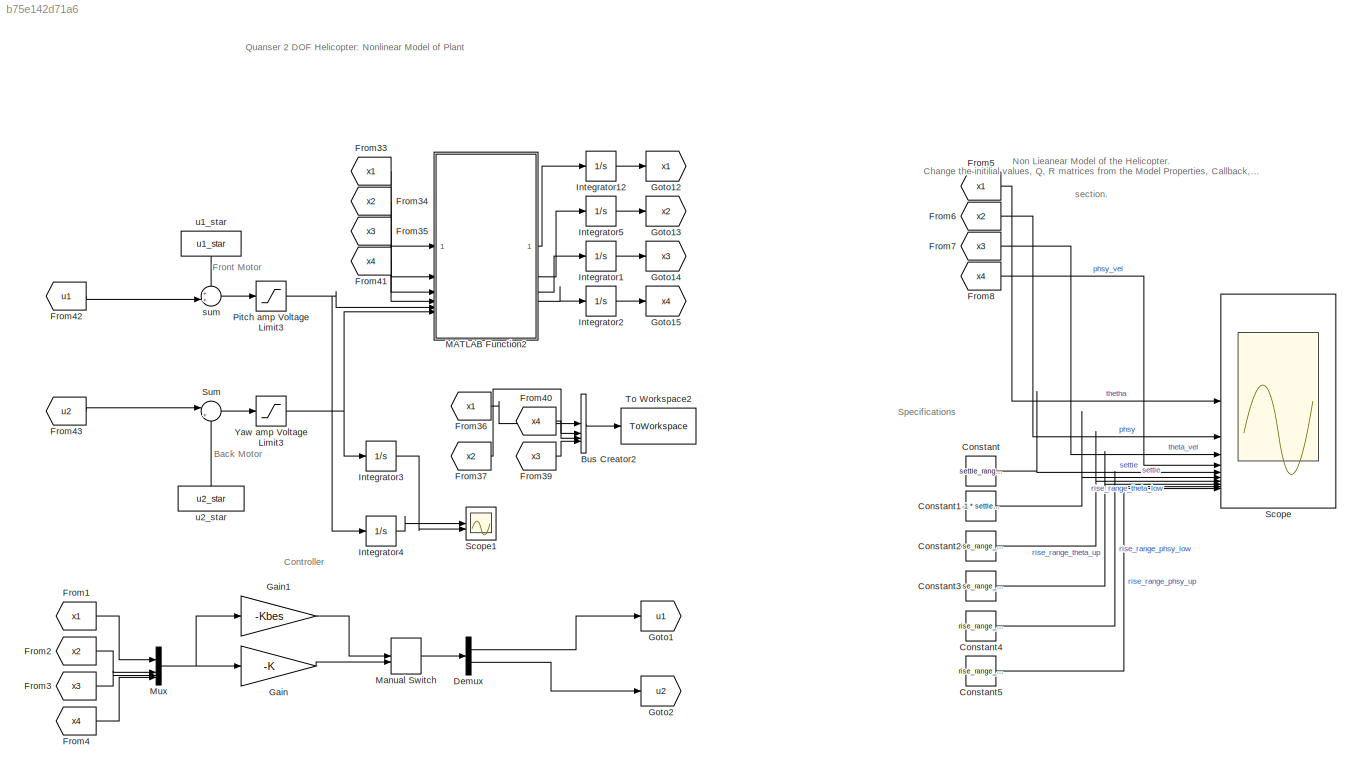
MODEL slx_b75e142d71a6
KIND model
CONFIG AbsTol = auto
CONFIG EnableMultiTasking = on
CONFIG FixedStep = 0.002
CONFIG InitFcn = % NOTE: If using VoltPAQ-X1, make sure both Gain switches are set to 3.\nK_AMP = 3;\n\n% Maximum Output Voltage (V): YAW limited to 15 V. PITCH limited to 24 V.\nVMAX_AMP_P = 24;\nVMAX_AMP_Y = 15;\n\n% Initial Angle of Pitch (rad)\ntheta_0 = 10*pi/180;\nphsy_0 = -10*pi/180;\n\n% Performance specifications\nsettle_range_p = 0.003;\nrise_range_theta_low = 0.1 * theta_0;\nrise_range_theta_up = 0.9 * theta_0;\n\nrise...<+1383ch>
CONFIG MaxStep = auto
CONFIG MinStep = auto
CONFIG RelTol = 1e-3
CONFIG SampleTimeConstraint = Unconstrained
CONFIG SolverName = ode4
CONFIG StartTime = 0.0
CONFIG StopTime = 20
BLOCK [BusCreator] Bus Creator2
  DisplayOption = bar
  InheritFromInputs = on
  Inputs = 4
BLOCK [Constant] Constant
  Value = settle_range_p
BLOCK [Constant] Constant1
  Value = -1 * settle_range_p
BLOCK [Constant] Constant2
  Value = rise_range_theta_low
BLOCK [Constant] Constant3
  Value = rise_range_theta_up
BLOCK [Constant] Constant4
  Value = rise_range_phsy_low
BLOCK [Constant] Constant5
  Value = rise_range_phsy_up
BLOCK [Demux] Demux
  Outputs = 2
BLOCK [From] From1
  GotoTag = x1
BLOCK [From] From2
  GotoTag = x2
BLOCK [From] From3
  GotoTag = x3
BLOCK [From] From33
  GotoTag = x1
BLOCK [From] From34
  GotoTag = x2
BLOCK [From] From35
  GotoTag = x3
BLOCK [From] From36
  GotoTag = x1
BLOCK [From] From37
  GotoTag = x2
BLOCK [From] From39
  GotoTag = x3
BLOCK [From] From4
  GotoTag = x4
BLOCK [From] From40
  GotoTag = x4
BLOCK [From] From41
  GotoTag = x4
BLOCK [From] From42
  GotoTag = u1
BLOCK [From] From43
  GotoTag = u2
BLOCK [From] From5
  GotoTag = x1
BLOCK [From] From6
  GotoTag = x2
BLOCK [From] From7
  GotoTag = x3
BLOCK [From] From8
  GotoTag = x4
BLOCK [Gain] Gain
  Gain = -K
  Multiplication = Matrix(K*u)
BLOCK [Gain] Gain1
  Gain = -Kbes
  Multiplication = Matrix(K*u)
BLOCK [Goto] Goto1
  GotoTag = u1
BLOCK [Goto] Goto12
  GotoTag = x1
BLOCK [Goto] Goto13
  GotoTag = x2
BLOCK [Goto] Goto14
  GotoTag = x3
BLOCK [Goto] Goto15
  GotoTag = x4
BLOCK [Goto] Goto2
  GotoTag = u2
BLOCK [Integrator] Integrator1
  InitialCondition = 0.20
  LimitOutput = on
  LowerSaturationLimit = -0.25
  UpperSaturationLimit = 0.25
BLOCK [Integrator] Integrator12
  InitialCondition = theta_0
  LimitOutput = on
  LowerSaturationLimit = -10*pi/180
  UpperSaturationLimit = 10 * pi/180
BLOCK [Integrator] Integrator2
  InitialCondition = -0.20
  LimitOutput = on
  LowerSaturationLimit = -0.25
  UpperSaturationLimit = 0.25
BLOCK [Integrator] Integrator3
  InitialCondition = 0.2
  LimitOutput = on
  LowerSaturationLimit = -0.25
  UpperSaturationLimit = 0.25
BLOCK [Integrator] Integrator4
  InitialCondition = 0.2
  LimitOutput = on
  LowerSaturationLimit = -0.25
  UpperSaturationLimit = 0.25
BLOCK [Integrator] Integrator5
  InitialCondition = phsy_0
  LimitOutput = on
  LowerSaturationLimit = -10*pi/180
  UpperSaturationLimit = 10*pi/180
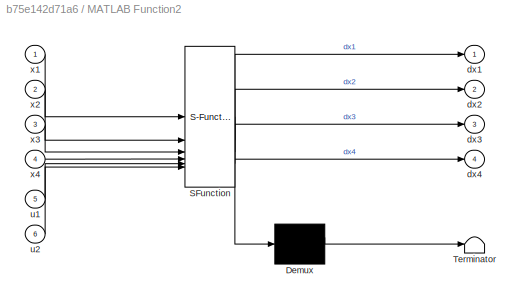
BLOCK [SubSystem] MATLAB Function2
  ErrorFcn = Stateflow.Translate.translate
  PermitHierarchicalResolution = ExplicitOnly
  SFBlockType = MATLAB Function
  TreatAsAtomicUnit = on
BLOCK [Demux] MATLAB Function2/ Demux 
  Outputs = 1
BLOCK [S-Function] MATLAB Function2/ SFunction 
  EnableBusSupport = on
  FunctionName = sf_sfun
  PortCounts = [6 5]
  SFcnIsStateOwnerBlock = off
  SFunctionDeploymentMode = off
  Tag = Stateflow S-Function 2
BLOCK [Terminator] MATLAB Function2/ Terminator 
BLOCK [Outport] MATLAB Function2/dx1
BLOCK [Outport] MATLAB Function2/dx2
  Port = 2
BLOCK [Outport] MATLAB Function2/dx3
  Port = 3
BLOCK [Outport] MATLAB Function2/dx4
  Port = 4
BLOCK [Inport] MATLAB Function2/u1
  Port = 5
BLOCK [Inport] MATLAB Function2/u2
  Port = 6
BLOCK [Inport] MATLAB Function2/x1
BLOCK [Inport] MATLAB Function2/x2
  Port = 2
BLOCK [Inport] MATLAB Function2/x3
  Port = 3
BLOCK [Inport] MATLAB Function2/x4
  Port = 4
BLOCK [ManualSwitch] Manual Switch
  CurrentSetting = 0
BLOCK [Mux] Mux
  DisplayOption = bar
BLOCK [Saturate] Pitch amp Voltage Limit3
  LowerLimit = - VMAX_AMP_P
  UpperLimit = VMAX_AMP_P
BLOCK [Scope] Scope
  Floating = off
  NumInputPorts = 10
  ScopeSpecificationString = Simulink.scopes.TimeScopeBlockCfg('CurrentConfiguration', extmgr.ConfigurationSet(extmgr.Configuration('Core','General UI',true),extmgr.Configuration('Core','Source UI',true),extmgr.Configuration('Sources','WiredSimulink',true),extmgr.Configuration('Visuals','Time Domain',true,'SerializedDisplays',{struct('MinYLimReal','-0.25','MaxYLimReal','0.25','YLabelReal','','MinYLimMag','0.00000','MaxYLimMag...<+2385ch>
BLOCK [Scope] Scope1
  Floating = off
  NumInputPorts = 2
  ScopeSpecificationString = Simulink.scopes.TimeScopeBlockCfg('CurrentConfiguration', extmgr.ConfigurationSet(extmgr.Configuration('Core','General UI',true),extmgr.Configuration('Core','Source UI',true),extmgr.Configuration('Sources','WiredSimulink',true,'DataLoggingVariableName','ScopeData1'),extmgr.Configuration('Visuals','Time Domain',true,'SerializedDisplays',{struct('MinYLimReal','-0.3125','MaxYLimReal','0.3125','YLabel...<+1378ch>
BLOCK [Sum] Sum
  Inputs = |++
BLOCK [ToWorkspace] To Workspace2
  FixptAsFi = on
  MaxDataPoints = inf
  SampleTime = -1
  VariableName = NonLinear
BLOCK [Saturate] Yaw amp Voltage Limit3
  LowerLimit = - VMAX_AMP_Y
  UpperLimit = VMAX_AMP_Y
BLOCK [Sum] sum
  Inputs = ++|
BLOCK [Constant] u1_star
  NameLocation = left
  Value = u1_star
BLOCK [Constant] u2_star
  NameLocation = right
  Value = u2_star
ANNOTATION (root): Controller
ANNOTATION (root): Back Motor
ANNOTATION (root): Front Motor
ANNOTATION (root): Non Lieanear Model of the Helicopter. Change the initilial values, Q, R matrices from the Model Properties, Callback, Init section.
ANNOTATION (root): Quanser 2 DOF Helicopter: Nonlinear Model of Plant
ANNOTATION (root): Specifications
LINE Bus Creator2:1 -> To Workspace2:1
LINE Constant1:1 -> Scope:6
LINE Constant2:1 -> Scope:7
LINE Constant3:1 -> Scope:8
LINE Constant4:1 -> Scope:9
LINE Constant5:1 -> Scope:10
LINE Constant:1 -> Scope:5
LINE Demux:1 -> Goto1:1
LINE Demux:2 -> Goto2:1
LINE From1:1 -> Mux:1
LINE From2:1 -> Mux:2
LINE From33:1 -> MATLAB Function2:1
LINE From34:1 -> MATLAB Function2:2
LINE From35:1 -> MATLAB Function2:3
LINE From36:1 -> Bus Creator2:1
LINE From37:1 -> Bus Creator2:2
LINE From39:1 -> Bus Creator2:4
LINE From3:1 -> Mux:3
LINE From40:1 -> Bus Creator2:3
LINE From41:1 -> MATLAB Function2:4
LINE From42:1 -> sum:2
LINE From43:1 -> Sum:1
LINE From4:1 -> Mux:4
LINE From5:1 -> Scope:1
LINE From6:1 -> Scope:2
LINE From7:1 -> Scope:3
LINE From8:1 -> Scope:4
LINE Gain1:1 -> Manual Switch:1
LINE Gain:1 -> Manual Switch:2
LINE Integrator12:1 -> Goto12:1
LINE Integrator1:1 -> Goto14:1
LINE Integrator2:1 -> Goto15:1
LINE Integrator3:1 -> Scope1:2
LINE Integrator4:1 -> Scope1:1
LINE Integrator5:1 -> Goto13:1
LINE MATLAB Function2:1 -> Integrator12:1
LINE MATLAB Function2:2 -> Integrator5:1
LINE MATLAB Function2:3 -> Integrator1:1
LINE MATLAB Function2:4 -> Integrator2:1
LINE Manual Switch:1 -> Demux:1
NET Mux:1 -> Gain1:1, Gain:1
NET Pitch amp Voltage Limit3:1 -> Integrator4:1, MATLAB Function2:5
LINE Sum:1 -> Yaw amp Voltage Limit3:1
NET Yaw amp Voltage Limit3:1 -> Integrator3:1, MATLAB Function2:6
LINE sum:1 -> Pitch amp Voltage Limit3:1
LINE u1_star:1 -> sum:1
LINE u2_star:1 -> Sum:2
note: NET lines group one-source signal fan-out (src -> all destinations, sorted); 1:1 wires keep LINE
CHART MATLAB Function2 states=1 transitions=1
  STATE_LABEL 'eML_blk_kernel()'
  STATE_LABEL 'SCRIPT:\nfunction [dx1,dx2,dx3,dx4]= NonlinearFunc(x1,x2,x3,x4,u1,u2)\n%% Initial Conditions\n% Gravitational Constant (m/s^2)\ng = 9.81;\n\n% Pitch and Yaw Motor Voltage-Torque Constant (N.m/V)\n% The amount of torque the motor generates per unit of input V   !!\nK_yp = 0.0219;\nK_py = 0.0068;\n\n% Pitch and Yaw Viscous Damping Constant (N.m.s/rad)\nB_p = 0.8; \nB_y = 0.318; \n\n% Mass of the Helicopter (kg)\nm ...<+604ch>'
CHART  states=0 transitions=0
